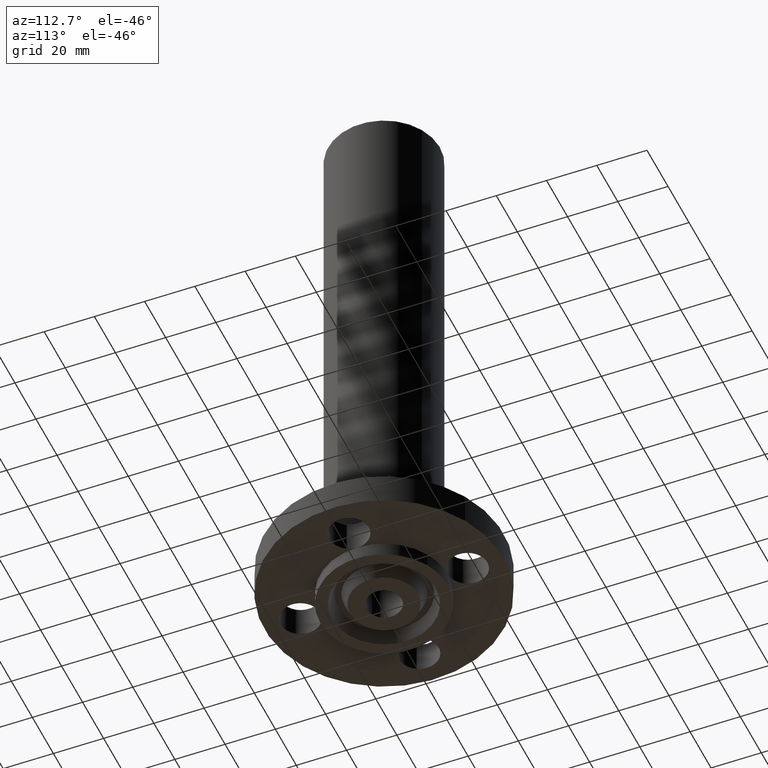
[diagram: clean part render]
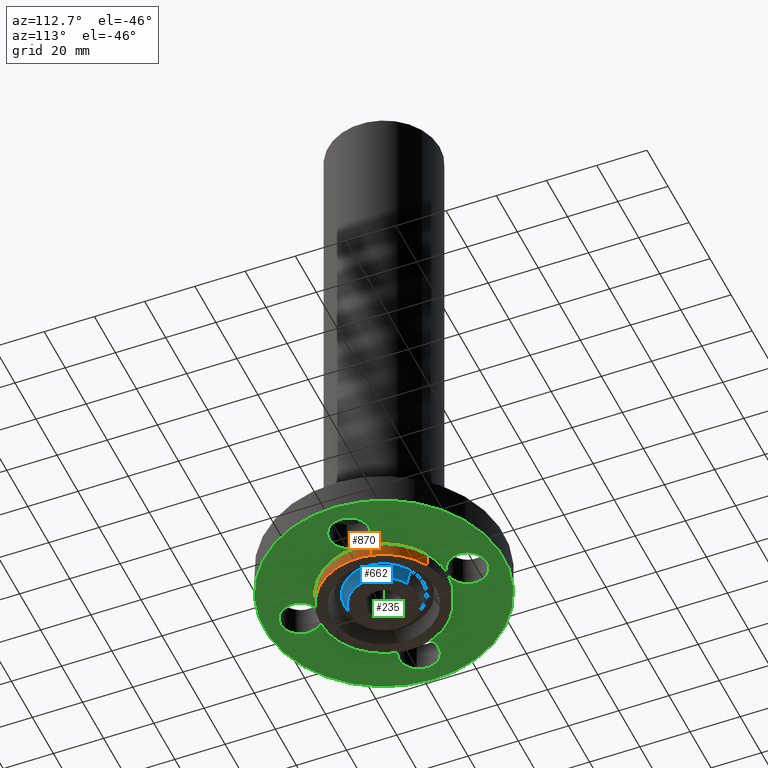
[diagram: same view with three faces highlighted in distinct colors, each labeled with its STEP entity id]
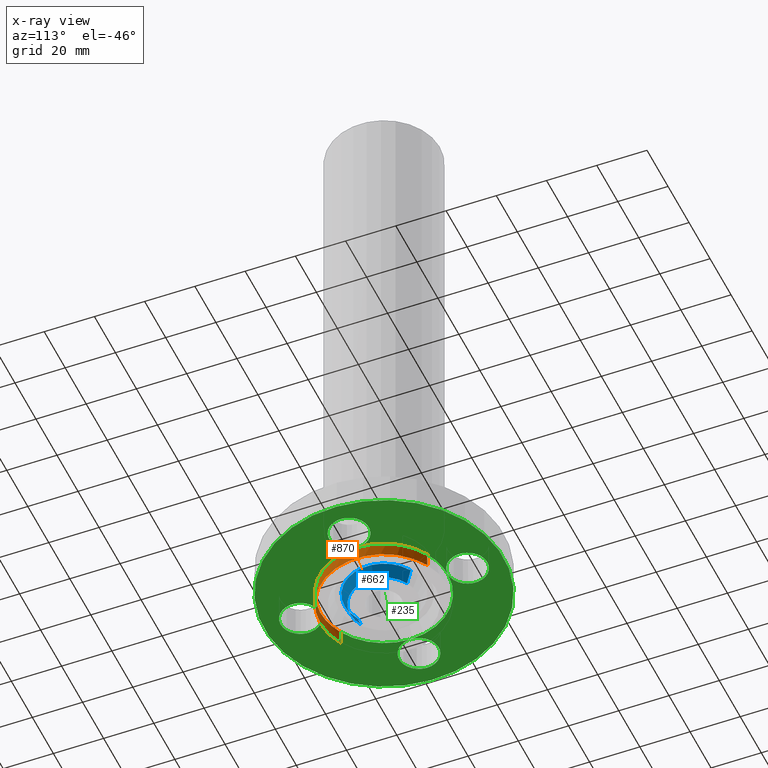
[diagram: x-ray of the same camera — body ghosted, the three highlighted faces saturated]
A machine part, auxiliary view with three faces highlighted in distinct colors.
The next image is the same camera in x-ray (body ghosted, the three faces saturated) — at least one of them is partly hidden behind the body in this view.
Their STEP definitions:

[orange] entity #870 — the highlighted cylindrical surface (partial cylindrical patch) has radius 25.4 mm, axis along (0, 0, -1).
#133=AXIS2_PLACEMENT_3D('Circle Axis2P3D',#131,#132,$) ;
#140=AXIS2_PLACEMENT_3D('Circle Axis2P3D',#138,#139,$) ;
#147=AXIS2_PLACEMENT_3D('Circle Axis2P3D',#145,#146,$) ;
#826=AXIS2_PLACEMENT_3D('Circle Axis2P3D',#824,#825,$) ;
#841=AXIS2_PLACEMENT_3D('Cylinder Axis2P3D',#838,#839,#840) ;
#128=CARTESIAN_POINT('Vertex',(-0.479425538606,-0.877582561894,0.)) ;
#131=CARTESIAN_POINT('Axis2P3D Location',(0.,0.,0.)) ;
#135=CARTESIAN_POINT('Vertex',(-1.26881384798E-016,-1.,0.)) ;
#138=CARTESIAN_POINT('Axis2P3D Location',(0.,0.,0.)) ;
#142=CARTESIAN_POINT('Vertex',(1.,-6.43249059873E-016,0.)) ;
#145=CARTESIAN_POINT('Axis2P3D Location',(0.,0.,0.)) ;
#149=CARTESIAN_POINT('Vertex',(0.479425538606,0.877582561894,0.)) ;
#819=CARTESIAN_POINT('Vertex',(-0.479425538606,-0.877582561894,-0.219000000001)) ;
#821=CARTESIAN_POINT('Vertex',(0.479425538606,0.877582561894,-0.219000000001)) ;
#824=CARTESIAN_POINT('Axis2P3D Location',(0.,0.,-0.219000000001)) ;
#838=CARTESIAN_POINT('Axis2P3D Location',(0.,0.,4.35925000002)) ;
#843=CARTESIAN_POINT('Line Origine',(-0.479425538606,-0.877582561894,-0.1095)) ;
#848=CARTESIAN_POINT('Line Origine',(0.479425538606,0.877582561894,-0.1095)) ;
#132=DIRECTION('Axis2P3D Direction',(0.,0.,-0.0393700787402)) ;
#139=DIRECTION('Axis2P3D Direction',(0.,0.,-0.0393700787402)) ;
#146=DIRECTION('Axis2P3D Direction',(0.,0.,-0.0393700787402)) ;
#825=DIRECTION('Axis2P3D Direction',(0.,0.,-0.0393700787402)) ;
#839=DIRECTION('Axis2P3D Direction',(0.,0.,-0.0393700787402)) ;
#840=DIRECTION('Axis2P3D XDirection',(0.0188750212049,0.0345504945626,0.)) ;
#844=DIRECTION('Vector Direction',(0.,0.,-0.0393700787402)) ;
#849=DIRECTION('Vector Direction',(0.,0.,-0.0393700787402)) ;
#845=VECTOR('Line Direction',#844,0.0393700787402) ;
#850=VECTOR('Line Direction',#849,0.0393700787402) ;
#863=ORIENTED_EDGE('',*,*,#828,.F.) ;
#864=ORIENTED_EDGE('',*,*,#852,.T.) ;
#865=ORIENTED_EDGE('',*,*,#151,.T.) ;
#866=ORIENTED_EDGE('',*,*,#144,.T.) ;
#867=ORIENTED_EDGE('',*,*,#137,.T.) ;
#868=ORIENTED_EDGE('',*,*,#847,.F.) ;
#870=ADVANCED_FACE('PartBody',(#869),#842,.T.) ;
#134=CIRCLE('generated circle',#133,1.) ;
#141=CIRCLE('generated circle',#140,1.) ;
#148=CIRCLE('generated circle',#147,1.) ;
#827=CIRCLE('generated circle',#826,1.) ;
#842=CYLINDRICAL_SURFACE('generated cylinder',#841,1.) ;
#137=EDGE_CURVE('',#136,#129,#134,.T.) ;
#144=EDGE_CURVE('',#143,#136,#141,.T.) ;
#151=EDGE_CURVE('',#150,#143,#148,.T.) ;
#828=EDGE_CURVE('',#822,#820,#827,.T.) ;
#847=EDGE_CURVE('',#820,#129,#846,.F.) ;
#852=EDGE_CURVE('',#822,#150,#851,.F.) ;
#862=EDGE_LOOP('',(#863,#864,#865,#866,#867,#868)) ;
#869=FACE_OUTER_BOUND('',#862,.T.) ;
#846=LINE('Line',#843,#845) ;
#851=LINE('Line',#848,#850) ;
#129=VERTEX_POINT('',#128) ;
#136=VERTEX_POINT('',#135) ;
#143=VERTEX_POINT('',#142) ;
#150=VERTEX_POINT('',#149) ;
#820=VERTEX_POINT('',#819) ;
#822=VERTEX_POINT('',#821) ;

[blue] entity #662 — the highlighted conical surface has half-angle 23 deg.
#608=AXIS2_PLACEMENT_3D('Circle Axis2P3D',#606,#607,$) ;
#623=AXIS2_PLACEMENT_3D('Cone Axis2P3D',#620,#621,#622) ;
#653=AXIS2_PLACEMENT_3D('Circle Axis2P3D',#651,#652,$) ;
#601=CARTESIAN_POINT('Vertex',(-0.254814673769,-0.466435131647,-0.219000000001)) ;
#603=CARTESIAN_POINT('Vertex',(0.254814673769,0.466435131647,-0.219000000001)) ;
#606=CARTESIAN_POINT('Axis2P3D Location',(0.,0.,-0.219000000001)) ;
#620=CARTESIAN_POINT('Axis2P3D Location',(0.,0.,-0.219000000001)) ;
#625=CARTESIAN_POINT('Line Origine',(-0.275176544399,-0.503707285825,-0.118943667509)) ;
#629=CARTESIAN_POINT('Vertex',(-0.295538415029,-0.540979440004,-0.0188873350169)) ;
#636=CARTESIAN_POINT('Vertex',(0.295538415029,0.540979440004,-0.0188873350169)) ;
#639=CARTESIAN_POINT('Line Origine',(0.275176544399,0.503707285825,-0.118943667509)) ;
#651=CARTESIAN_POINT('Axis2P3D Location',(0.,0.,-0.0188873350169)) ;
#607=DIRECTION('Axis2P3D Direction',(0.,0.,-0.0393700787402)) ;
#621=DIRECTION('Axis2P3D Direction',(-0.,-0.,0.0393700787402)) ;
#622=DIRECTION('Axis2P3D XDirection',(-0.0188750212049,-0.0345504945626,0.)) ;
#626=DIRECTION('Vector Direction',(-0.00737505833565,-0.0134999537303,0.0362403485611)) ;
#640=DIRECTION('Vector Direction',(0.00737505833565,0.0134999537303,0.0362403485611)) ;
#652=DIRECTION('Axis2P3D Direction',(-0.,0.,0.0393700787402)) ;
#627=VECTOR('Line Direction',#626,0.0393700787402) ;
#641=VECTOR('Line Direction',#640,0.0393700787402) ;
#657=ORIENTED_EDGE('',*,*,#610,.F.) ;
#658=ORIENTED_EDGE('',*,*,#643,.T.) ;
#659=ORIENTED_EDGE('',*,*,#655,.T.) ;
#660=ORIENTED_EDGE('',*,*,#631,.F.) ;
#662=ADVANCED_FACE('PartBody',(#661),#624,.T.) ;
#609=CIRCLE('generated circle',#608,0.531500000002) ;
#654=CIRCLE('generated circle',#653,0.616442786692) ;
#624=CONICAL_SURFACE('Cone',#623,0.531500000002,0.401425727959) ;
#610=EDGE_CURVE('',#604,#602,#609,.T.) ;
#631=EDGE_CURVE('',#602,#630,#628,.T.) ;
#643=EDGE_CURVE('',#604,#637,#642,.T.) ;
#655=EDGE_CURVE('',#637,#630,#654,.F.) ;
#656=EDGE_LOOP('',(#657,#658,#659,#660)) ;
#661=FACE_OUTER_BOUND('',#656,.T.) ;
#628=LINE('Line',#625,#627) ;
#642=LINE('Line',#639,#641) ;
#602=VERTEX_POINT('',#601) ;
#604=VERTEX_POINT('',#603) ;
#630=VERTEX_POINT('',#629) ;
#637=VERTEX_POINT('',#636) ;

[green] entity #235 — the highlighted planar face has unit normal (0, 0, -1).
#65=AXIS2_PLACEMENT_3D('Circle Axis2P3D',#63,#64,$) ;
#78=AXIS2_PLACEMENT_3D('Plane Axis2P3D',#75,#76,#77) ;
#82=AXIS2_PLACEMENT_3D('Circle Axis2P3D',#80,#81,$) ;
#91=AXIS2_PLACEMENT_3D('Circle Axis2P3D',#89,#90,$) ;
#100=AXIS2_PLACEMENT_3D('Circle Axis2P3D',#98,#99,$) ;
#109=AXIS2_PLACEMENT_3D('Circle Axis2P3D',#107,#108,$) ;
#116=AXIS2_PLACEMENT_3D('Circle Axis2P3D',#114,#115,$) ;
#126=AXIS2_PLACEMENT_3D('Circle Axis2P3D',#124,#125,$) ;
#133=AXIS2_PLACEMENT_3D('Circle Axis2P3D',#131,#132,$) ;
#140=AXIS2_PLACEMENT_3D('Circle Axis2P3D',#138,#139,$) ;
#147=AXIS2_PLACEMENT_3D('Circle Axis2P3D',#145,#146,$) ;
#154=AXIS2_PLACEMENT_3D('Circle Axis2P3D',#152,#153,$) ;
#161=AXIS2_PLACEMENT_3D('Circle Axis2P3D',#159,#160,$) ;
#174=AXIS2_PLACEMENT_3D('Circle Axis2P3D',#172,#173,$) ;
#181=AXIS2_PLACEMENT_3D('Circle Axis2P3D',#179,#180,$) ;
#188=AXIS2_PLACEMENT_3D('Circle Axis2P3D',#186,#187,$) ;
#198=AXIS2_PLACEMENT_3D('Circle Axis2P3D',#196,#197,$) ;
#203=AXIS2_PLACEMENT_3D('Circle Axis2P3D',#201,#202,$) ;
#213=AXIS2_PLACEMENT_3D('Circle Axis2P3D',#211,#212,$) ;
#220=AXIS2_PLACEMENT_3D('Circle Axis2P3D',#218,#219,$) ;
#227=AXIS2_PLACEMENT_3D('Circle Axis2P3D',#225,#226,$) ;
#46=CARTESIAN_POINT('Vertex',(1.03794940582,-0.148621916968,2.2401153548E-016)) ;
#60=CARTESIAN_POINT('Vertex',(1.58205059419,0.148621916968,2.2401153548E-016)) ;
#63=CARTESIAN_POINT('Axis2P3D Location',(1.31000000001,0.,0.)) ;
#75=CARTESIAN_POINT('Axis2P3D Location',(0.,0.64497843715,0.)) ;
#80=CARTESIAN_POINT('Axis2P3D Location',(0.,0.,0.)) ;
#84=CARTESIAN_POINT('Vertex',(-0.898922884886,-1.64546730355,0.)) ;
#86=CARTESIAN_POINT('Vertex',(0.898922884886,1.64546730355,0.)) ;
#89=CARTESIAN_POINT('Axis2P3D Location',(0.,0.,0.)) ;
#98=CARTESIAN_POINT('Axis2P3D Location',(-1.31000000001,-1.39870617276E-016,0.)) ;
#102=CARTESIAN_POINT('Vertex',(-1.03794940582,0.148621916968,0.)) ;
#104=CARTESIAN_POINT('Vertex',(-1.,0.,0.)) ;
#107=CARTESIAN_POINT('Axis2P3D Location',(-1.31000000001,-2.79741234551E-016,0.)) ;
#111=CARTESIAN_POINT('Vertex',(-1.58205059419,-0.148621916968,2.2401153548E-016)) ;
#114=CARTESIAN_POINT('Axis2P3D Location',(-1.31000000001,-1.39870617276E-016,0.)) ;
#124=CARTESIAN_POINT('Axis2P3D Location',(0.,0.,0.)) ;
#128=CARTESIAN_POINT('Vertex',(-0.479425538606,-0.877582561894,0.)) ;
#131=CARTESIAN_POINT('Axis2P3D Location',(0.,0.,0.)) ;
#135=CARTESIAN_POINT('Vertex',(-1.26881384798E-016,-1.,0.)) ;
#138=CARTESIAN_POINT('Axis2P3D Location',(0.,0.,0.)) ;
#142=CARTESIAN_POINT('Vertex',(1.,-6.43249059873E-016,0.)) ;
#145=CARTESIAN_POINT('Axis2P3D Location',(0.,0.,0.)) ;
#149=CARTESIAN_POINT('Vertex',(0.479425538606,0.877582561894,0.)) ;
#152=CARTESIAN_POINT('Axis2P3D Location',(0.,0.,0.)) ;
#156=CARTESIAN_POINT('Vertex',(-1.90823900527E-016,1.,0.)) ;
#159=CARTESIAN_POINT('Axis2P3D Location',(0.,0.,0.)) ;
#172=CARTESIAN_POINT('Axis2P3D Location',(-6.99353086378E-017,-1.31000000001,0.)) ;
#176=CARTESIAN_POINT('Vertex',(-0.148621916968,-1.03794940582,0.)) ;
#179=CARTESIAN_POINT('Axis2P3D Location',(-2.44773580232E-016,-1.31000000001,0.)) ;
#183=CARTESIAN_POINT('Vertex',(0.148621916968,-1.58205059419,2.2401153548E-016)) ;
#186=CARTESIAN_POINT('Axis2P3D Location',(-6.99353086378E-017,-1.31000000001,0.)) ;
#196=CARTESIAN_POINT('Axis2P3D Location',(1.31000000001,1.39870617276E-016,0.)) ;
#201=CARTESIAN_POINT('Axis2P3D Location',(1.31000000001,1.39870617276E-016,0.)) ;
#211=CARTESIAN_POINT('Axis2P3D Location',(-2.09805925913E-016,1.31000000001,0.)) ;
#215=CARTESIAN_POINT('Vertex',(0.148621916968,1.03794940582,0.)) ;
#218=CARTESIAN_POINT('Axis2P3D Location',(-2.44773580232E-016,1.31000000001,0.)) ;
#222=CARTESIAN_POINT('Vertex',(-0.148621916968,1.58205059419,2.2401153548E-016)) ;
#225=CARTESIAN_POINT('Axis2P3D Location',(-2.09805925913E-016,1.31000000001,0.)) ;
#64=DIRECTION('Axis2P3D Direction',(0.,-0.,0.0393700787402)) ;
#76=DIRECTION('Axis2P3D Direction',(0.,0.,-0.0393700787402)) ;
#77=DIRECTION('Axis2P3D XDirection',(0.0393700787402,0.,0.)) ;
#81=DIRECTION('Axis2P3D Direction',(0.,0.,-0.0393700787402)) ;
#90=DIRECTION('Axis2P3D Direction',(0.,0.,-0.0393700787402)) ;
#99=DIRECTION('Axis2P3D Direction',(0.,0.,-0.0393700787402)) ;
#108=DIRECTION('Axis2P3D Direction',(0.,0.,-0.0393700787402)) ;
#115=DIRECTION('Axis2P3D Direction',(0.,0.,-0.0393700787402)) ;
#125=DIRECTION('Axis2P3D Direction',(0.,0.,-0.0393700787402)) ;
#132=DIRECTION('Axis2P3D Direction',(0.,0.,-0.0393700787402)) ;
#139=DIRECTION('Axis2P3D Direction',(0.,0.,-0.0393700787402)) ;
#146=DIRECTION('Axis2P3D Direction',(0.,0.,-0.0393700787402)) ;
#153=DIRECTION('Axis2P3D Direction',(0.,0.,-0.0393700787402)) ;
#160=DIRECTION('Axis2P3D Direction',(0.,0.,-0.0393700787402)) ;
#173=DIRECTION('Axis2P3D Direction',(0.,0.,-0.0393700787402)) ;
#180=DIRECTION('Axis2P3D Direction',(0.,0.,-0.0393700787402)) ;
#187=DIRECTION('Axis2P3D Direction',(0.,0.,-0.0393700787402)) ;
#197=DIRECTION('Axis2P3D Direction',(0.,0.,-0.0393700787402)) ;
#202=DIRECTION('Axis2P3D Direction',(0.,0.,-0.0393700787402)) ;
#212=DIRECTION('Axis2P3D Direction',(0.,0.,-0.0393700787402)) ;
#219=DIRECTION('Axis2P3D Direction',(0.,0.,-0.0393700787402)) ;
#226=DIRECTION('Axis2P3D Direction',(0.,0.,-0.0393700787402)) ;
#95=ORIENTED_EDGE('',*,*,#88,.T.) ;
#96=ORIENTED_EDGE('',*,*,#93,.T.) ;
#120=ORIENTED_EDGE('',*,*,#106,.F.) ;
#121=ORIENTED_EDGE('',*,*,#113,.F.) ;
#122=ORIENTED_EDGE('',*,*,#118,.F.) ;
#165=ORIENTED_EDGE('',*,*,#130,.F.) ;
#166=ORIENTED_EDGE('',*,*,#137,.F.) ;
#167=ORIENTED_EDGE('',*,*,#144,.F.) ;
#168=ORIENTED_EDGE('',*,*,#151,.F.) ;
#169=ORIENTED_EDGE('',*,*,#158,.F.) ;
#170=ORIENTED_EDGE('',*,*,#163,.F.) ;
#192=ORIENTED_EDGE('',*,*,#178,.F.) ;
#193=ORIENTED_EDGE('',*,*,#185,.F.) ;
#194=ORIENTED_EDGE('',*,*,#190,.F.) ;
#207=ORIENTED_EDGE('',*,*,#200,.F.) ;
#208=ORIENTED_EDGE('',*,*,#67,.F.) ;
#209=ORIENTED_EDGE('',*,*,#205,.F.) ;
#231=ORIENTED_EDGE('',*,*,#217,.F.) ;
#232=ORIENTED_EDGE('',*,*,#224,.F.) ;
#233=ORIENTED_EDGE('',*,*,#229,.F.) ;
#123=FACE_BOUND('',#119,.T.) ;
#171=FACE_BOUND('',#164,.T.) ;
#195=FACE_BOUND('',#191,.T.) ;
#210=FACE_BOUND('',#206,.T.) ;
#234=FACE_BOUND('',#230,.T.) ;
#235=ADVANCED_FACE('PartBody',(#97,#123,#171,#195,#210,#234),#79,.T.) ;
#66=CIRCLE('generated circle',#65,0.310000000001) ;
#83=CIRCLE('generated circle',#82,1.87500000001) ;
#92=CIRCLE('generated circle',#91,1.87500000001) ;
#101=CIRCLE('generated circle',#100,0.310000000001) ;
#110=CIRCLE('generated circle',#109,0.310000000001) ;
#117=CIRCLE('generated circle',#116,0.310000000001) ;
#127=CIRCLE('generated circle',#126,1.) ;
#134=CIRCLE('generated circle',#133,1.) ;
#141=CIRCLE('generated circle',#140,1.) ;
#148=CIRCLE('generated circle',#147,1.) ;
#155=CIRCLE('generated circle',#154,1.) ;
#162=CIRCLE('generated circle',#161,1.) ;
#175=CIRCLE('generated circle',#174,0.310000000001) ;
#182=CIRCLE('generated circle',#181,0.310000000001) ;
#189=CIRCLE('generated circle',#188,0.310000000001) ;
#199=CIRCLE('generated circle',#198,0.310000000001) ;
#204=CIRCLE('generated circle',#203,0.310000000001) ;
#214=CIRCLE('generated circle',#213,0.310000000001) ;
#221=CIRCLE('generated circle',#220,0.310000000001) ;
#228=CIRCLE('generated circle',#227,0.310000000001) ;
#67=EDGE_CURVE('',#61,#47,#66,.F.) ;
#88=EDGE_CURVE('',#85,#87,#83,.T.) ;
#93=EDGE_CURVE('',#87,#85,#92,.T.) ;
#106=EDGE_CURVE('',#103,#105,#101,.T.) ;
#113=EDGE_CURVE('',#112,#103,#110,.T.) ;
#118=EDGE_CURVE('',#105,#112,#117,.T.) ;
#130=EDGE_CURVE('',#129,#105,#127,.T.) ;
#137=EDGE_CURVE('',#136,#129,#134,.T.) ;
#144=EDGE_CURVE('',#143,#136,#141,.T.) ;
#151=EDGE_CURVE('',#150,#143,#148,.T.) ;
#158=EDGE_CURVE('',#157,#150,#155,.T.) ;
#163=EDGE_CURVE('',#105,#157,#162,.T.) ;
#178=EDGE_CURVE('',#177,#136,#175,.T.) ;
#185=EDGE_CURVE('',#184,#177,#182,.T.) ;
#190=EDGE_CURVE('',#136,#184,#189,.T.) ;
#200=EDGE_CURVE('',#47,#143,#199,.T.) ;
#205=EDGE_CURVE('',#143,#61,#204,.T.) ;
#217=EDGE_CURVE('',#216,#157,#214,.T.) ;
#224=EDGE_CURVE('',#223,#216,#221,.T.) ;
#229=EDGE_CURVE('',#157,#223,#228,.T.) ;
#94=EDGE_LOOP('',(#95,#96)) ;
#119=EDGE_LOOP('',(#120,#121,#122)) ;
#164=EDGE_LOOP('',(#165,#166,#167,#168,#169,#170)) ;
#191=EDGE_LOOP('',(#192,#193,#194)) ;
#206=EDGE_LOOP('',(#207,#208,#209)) ;
#230=EDGE_LOOP('',(#231,#232,#233)) ;
#97=FACE_OUTER_BOUND('',#94,.T.) ;
#79=PLANE('',#78) ;
#47=VERTEX_POINT('',#46) ;
#61=VERTEX_POINT('',#60) ;
#85=VERTEX_POINT('',#84) ;
#87=VERTEX_POINT('',#86) ;
#103=VERTEX_POINT('',#102) ;
#105=VERTEX_POINT('',#104) ;
#112=VERTEX_POINT('',#111) ;
#129=VERTEX_POINT('',#128) ;
#136=VERTEX_POINT('',#135) ;
#143=VERTEX_POINT('',#142) ;
#150=VERTEX_POINT('',#149) ;
#157=VERTEX_POINT('',#156) ;
#177=VERTEX_POINT('',#176) ;
#184=VERTEX_POINT('',#183) ;
#216=VERTEX_POINT('',#215) ;
#223=VERTEX_POINT('',#222) ;